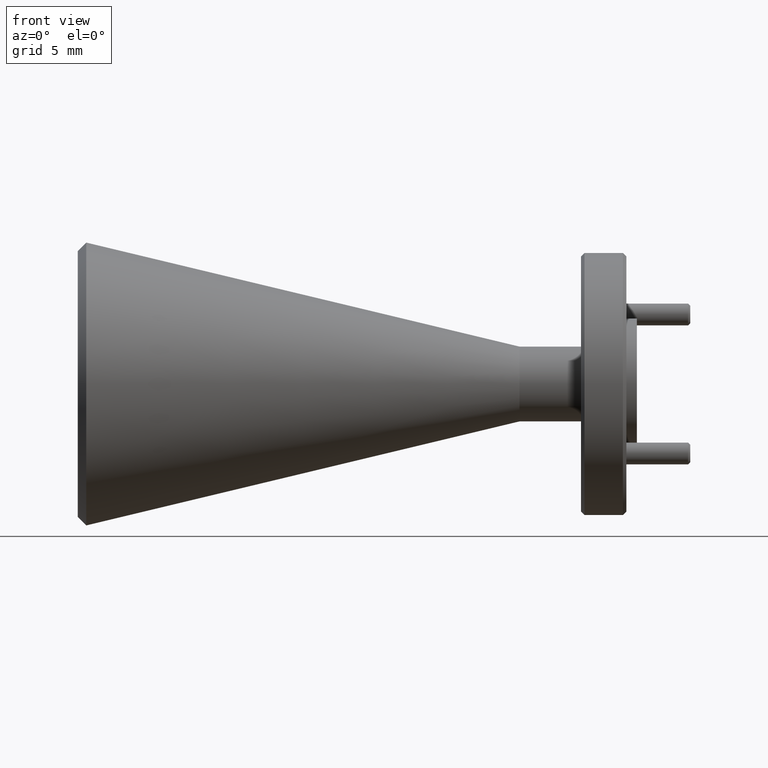
[diagram: clean part render]
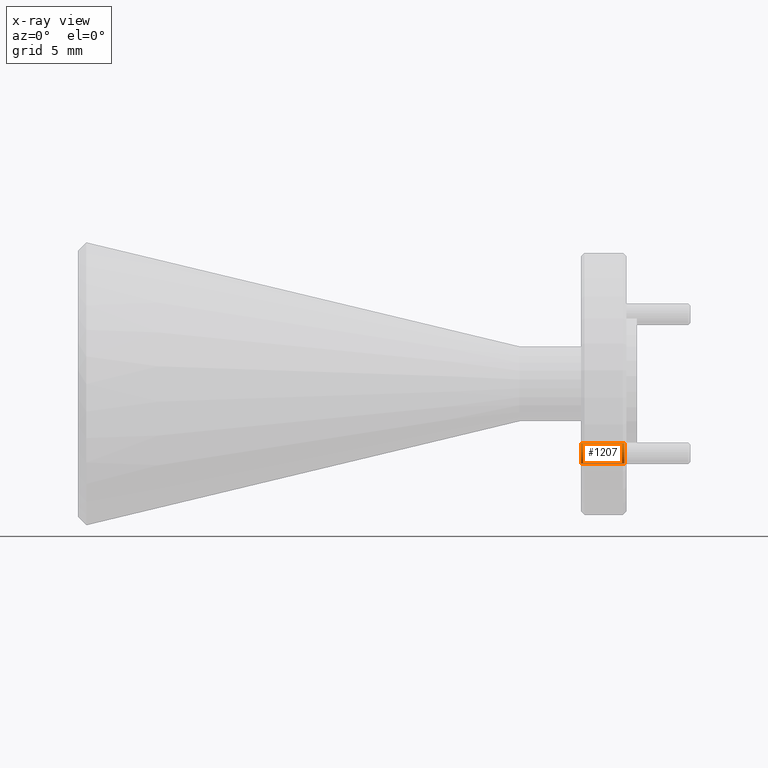
[diagram: x-ray — body ghosted, one internal face saturated and labeled with its STEP entity id]
A machine part, front view, then the same camera in x-ray: the body is ghosted and one INTERNAL B-rep face — a face not visible from any outside direction — is saturated and labeled: STEP entity #1207.
In plain terms, the highlighted cylindrical surface (edge-blend (fillet) strip) has radius 0.7557 mm, axis along (1, -0, -0).
Its self-contained STEP definition (entity closure, byte-faithful):
#12 = CIRCLE ( 'NONE', #2016, 0.02975000000000000200 ) ;
#97 = ORIENTED_EDGE ( 'NONE', *, *, #518, .T. ) ;
#150 = EDGE_CURVE ( 'NONE', #1637, #893, #12, .T. ) ;
#166 = DIRECTION ( 'NONE',  ( 1.000000000000000000, -0.0000000000000000000, -0.0000000000000000000 ) ) ;
#339 = CARTESIAN_POINT ( 'NONE',  ( 1.172337875290413200, 0.4422152192812484600, 0.6777760569557844700 ) ) ;
#361 = VERTEX_POINT ( 'NONE', #1447 ) ;
#383 = EDGE_LOOP ( 'NONE', ( #1514, #97, #895, #1673 ) ) ;
#470 = AXIS2_PLACEMENT_3D ( 'NONE', #1611, #1775, #1799 ) ;
#512 = CARTESIAN_POINT ( 'NONE',  ( 1.172337875290413200, 0.4422152192812484600, 0.7075260569557845200 ) ) ;
#518 = EDGE_CURVE ( 'NONE', #774, #1637, #1113, .T. ) ;
#575 = DIRECTION ( 'NONE',  ( 1.000000000000000000, -0.0000000000000000000, -0.0000000000000000000 ) ) ;
#580 = LINE ( 'NONE', #2068, #1136 ) ;
#624 = DIRECTION ( 'NONE',  ( 0.0000000000000000000, 0.0000000000000000000, -1.000000000000000000 ) ) ;
#735 = CIRCLE ( 'NONE', #470, 0.02975000000000000200 ) ;
#772 = CARTESIAN_POINT ( 'NONE',  ( 1.177337875290413300, 0.4422152192812484600, 0.7372760569557844600 ) ) ;
#774 = VERTEX_POINT ( 'NONE', #1972 ) ;
#860 = FACE_OUTER_BOUND ( 'NONE', #383, .T. ) ;
#893 = VERTEX_POINT ( 'NONE', #339 ) ;
#895 = ORIENTED_EDGE ( 'NONE', *, *, #150, .T. ) ;
#939 = CYLINDRICAL_SURFACE ( 'NONE', #1726, 0.02975000000000000200 ) ;
#957 = EDGE_CURVE ( 'NONE', #361, #774, #735, .T. ) ;
#1113 = LINE ( 'NONE', #772, #2050 ) ;
#1118 = DIRECTION ( 'NONE',  ( 1.000000000000000000, -0.0000000000000000000, -0.0000000000000000000 ) ) ;
#1120 = EDGE_CURVE ( 'NONE', #361, #893, #580, .T. ) ;
#1136 = VECTOR ( 'NONE', #575, 39.37007874015748100 ) ;
#1207 = ADVANCED_FACE ( 'NONE', ( #860 ), #939, .F. ) ;
#1325 = DIRECTION ( 'NONE',  ( 0.0000000000000000000, 0.0000000000000000000, -1.000000000000000000 ) ) ;
#1447 = CARTESIAN_POINT ( 'NONE',  ( 1.047337875290413400, 0.4422152192812484600, 0.6777760569557844700 ) ) ;
#1514 = ORIENTED_EDGE ( 'NONE', *, *, #957, .T. ) ;
#1515 = CARTESIAN_POINT ( 'NONE',  ( 1.172337875290413200, 0.4422152192812484600, 0.7372760569557844600 ) ) ;
#1611 = CARTESIAN_POINT ( 'NONE',  ( 1.047337875290413400, 0.4422152192812484600, 0.7075260569557845200 ) ) ;
#1619 = CARTESIAN_POINT ( 'NONE',  ( 1.177337875290413300, 0.4422152192812484600, 0.7075260569557845200 ) ) ;
#1637 = VERTEX_POINT ( 'NONE', #1515 ) ;
#1673 = ORIENTED_EDGE ( 'NONE', *, *, #1120, .F. ) ;
#1726 = AXIS2_PLACEMENT_3D ( 'NONE', #1619, #1974, #624 ) ;
#1775 = DIRECTION ( 'NONE',  ( -1.000000000000000000, 0.0000000000000000000, 0.0000000000000000000 ) ) ;
#1799 = DIRECTION ( 'NONE',  ( 0.0000000000000000000, 0.0000000000000000000, 1.000000000000000000 ) ) ;
#1972 = CARTESIAN_POINT ( 'NONE',  ( 1.047337875290413400, 0.4422152192812484600, 0.7372760569557844600 ) ) ;
#1974 = DIRECTION ( 'NONE',  ( 1.000000000000000000, -0.0000000000000000000, -0.0000000000000000000 ) ) ;
#2016 = AXIS2_PLACEMENT_3D ( 'NONE', #512, #166, #1325 ) ;
#2050 = VECTOR ( 'NONE', #1118, 39.37007874015748100 ) ;
#2068 = CARTESIAN_POINT ( 'NONE',  ( 1.177337875290413300, 0.4422152192812484600, 0.6777760569557844700 ) ) ;